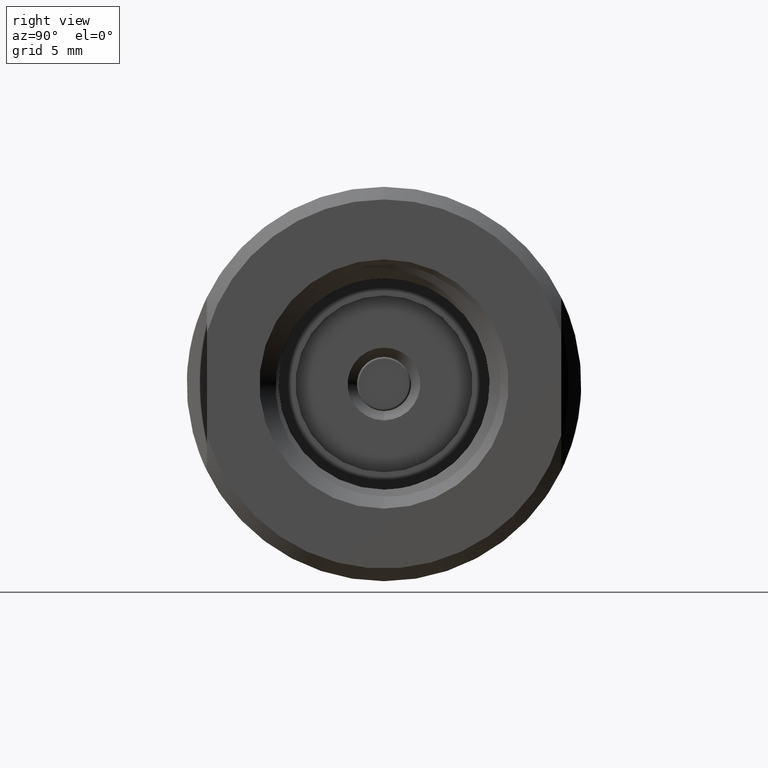
[diagram: clean part render]
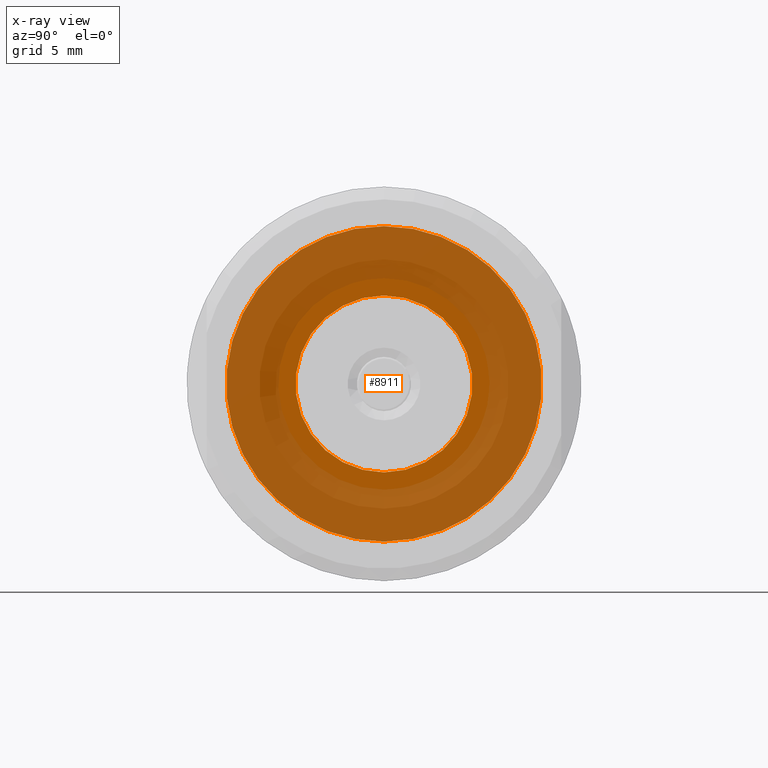
[diagram: x-ray — body ghosted, one internal face saturated and labeled with its STEP entity id]
A machine part, right view, then the same camera in x-ray: the body is ghosted and one INTERNAL B-rep face — a face not visible from any outside direction — is saturated and labeled: STEP entity #8911.
In plain terms, the highlighted planar face has unit normal (-1, 0, -0).
Its self-contained STEP definition (entity closure, byte-faithful):
#755 = AXIS2_PLACEMENT_3D ( 'NONE', #6703, #8612, #8546 ) ;
#836 = FACE_OUTER_BOUND ( 'NONE', #10981, .T. ) ;
#1164 = VERTEX_POINT ( 'NONE', #12106 ) ;
#1370 = CIRCLE ( 'NONE', #12341, 0.1400000000000000411 ) ;
#1740 = DIRECTION ( 'NONE',  ( -1.000000000000000000, 0.0000000000000000000, -0.0000000000000000000 ) ) ;
#1883 = VERTEX_POINT ( 'NONE', #10303 ) ;
#2380 = ORIENTED_EDGE ( 'NONE', *, *, #11737, .T. ) ;
#2661 = DIRECTION ( 'NONE',  ( -1.000000000000000000, -0.0000000000000000000, -0.0000000000000000000 ) ) ;
#3072 = ORIENTED_EDGE ( 'NONE', *, *, #5090, .F. ) ;
#3516 = DIRECTION ( 'NONE',  ( 0.0000000000000000000, 0.0000000000000000000, 1.000000000000000000 ) ) ;
#3700 = PLANE ( 'NONE',  #6522 ) ;
#3855 = DIRECTION ( 'NONE',  ( 0.0000000000000000000, 0.0000000000000000000, 1.000000000000000000 ) ) ;
#4326 = VERTEX_POINT ( 'NONE', #11159 ) ;
#4399 = CARTESIAN_POINT ( 'NONE',  ( 0.1559999999999999998, 0.0000000000000000000, 0.0000000000000000000 ) ) ;
#4464 = DIRECTION ( 'NONE',  ( -1.000000000000000000, -0.0000000000000000000, -0.0000000000000000000 ) ) ;
#4699 = EDGE_LOOP ( 'NONE', ( #10185, #3072 ) ) ;
#4700 = CARTESIAN_POINT ( 'NONE',  ( 0.1559999999999999998, 0.0000000000000000000, 0.0000000000000000000 ) ) ;
#5090 = EDGE_CURVE ( 'NONE', #4326, #1883, #11718, .T. ) ;
#5221 = CARTESIAN_POINT ( 'NONE',  ( 0.1559999999999999998, 0.0000000000000000000, 0.0000000000000000000 ) ) ;
#6031 = EDGE_CURVE ( 'NONE', #1883, #4326, #1370, .T. ) ;
#6054 = DIRECTION ( 'NONE',  ( 0.0000000000000000000, 0.0000000000000000000, 1.000000000000000000 ) ) ;
#6498 = DIRECTION ( 'NONE',  ( -0.0000000000000000000, 0.0000000000000000000, 1.000000000000000000 ) ) ;
#6522 = AXIS2_PLACEMENT_3D ( 'NONE', #4700, #1740, #6498 ) ;
#6703 = CARTESIAN_POINT ( 'NONE',  ( 0.1559999999999999998, 0.0000000000000000000, 0.0000000000000000000 ) ) ;
#6778 = CARTESIAN_POINT ( 'NONE',  ( 0.1559999999999999998, 0.0000000000000000000, 0.0000000000000000000 ) ) ;
#7150 = AXIS2_PLACEMENT_3D ( 'NONE', #6778, #2661, #3855 ) ;
#7925 = CARTESIAN_POINT ( 'NONE',  ( 0.1559999999999999998, 3.055493763872646882E-17, -0.2495000000000000273 ) ) ;
#8237 = ORIENTED_EDGE ( 'NONE', *, *, #11438, .T. ) ;
#8546 = DIRECTION ( 'NONE',  ( 0.0000000000000000000, 0.0000000000000000000, 1.000000000000000000 ) ) ;
#8612 = DIRECTION ( 'NONE',  ( -1.000000000000000000, -0.0000000000000000000, -0.0000000000000000000 ) ) ;
#8911 = ADVANCED_FACE ( 'NONE', ( #836, #11466 ), #3700, .T. ) ;
#8968 = CIRCLE ( 'NONE', #7150, 0.2495000000000000273 ) ;
#10185 = ORIENTED_EDGE ( 'NONE', *, *, #6031, .F. ) ;
#10303 = CARTESIAN_POINT ( 'NONE',  ( 0.1559999999999999998, 0.0000000000000000000, 0.1400000000000000411 ) ) ;
#10822 = CIRCLE ( 'NONE', #12446, 0.2495000000000000273 ) ;
#10847 = DIRECTION ( 'NONE',  ( -1.000000000000000000, -0.0000000000000000000, -0.0000000000000000000 ) ) ;
#10981 = EDGE_LOOP ( 'NONE', ( #8237, #2380 ) ) ;
#11159 = CARTESIAN_POINT ( 'NONE',  ( 0.1559999999999999998, 1.714505518806295316E-17, -0.1400000000000000411 ) ) ;
#11438 = EDGE_CURVE ( 'NONE', #1164, #11840, #8968, .T. ) ;
#11466 = FACE_BOUND ( 'NONE', #4699, .T. ) ;
#11718 = CIRCLE ( 'NONE', #755, 0.1400000000000000411 ) ;
#11737 = EDGE_CURVE ( 'NONE', #11840, #1164, #10822, .T. ) ;
#11840 = VERTEX_POINT ( 'NONE', #7925 ) ;
#12106 = CARTESIAN_POINT ( 'NONE',  ( 0.1559999999999999998, 0.0000000000000000000, 0.2495000000000000273 ) ) ;
#12341 = AXIS2_PLACEMENT_3D ( 'NONE', #5221, #10847, #6054 ) ;
#12446 = AXIS2_PLACEMENT_3D ( 'NONE', #4399, #4464, #3516 ) ;